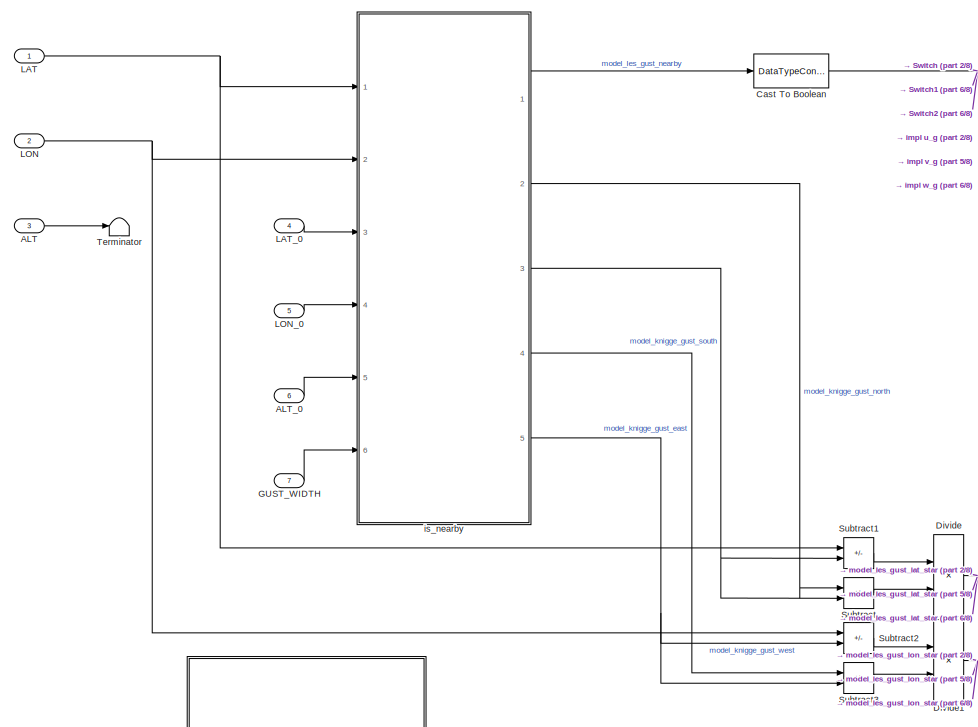
[diagram: root canvas - part 1/8, top left region]
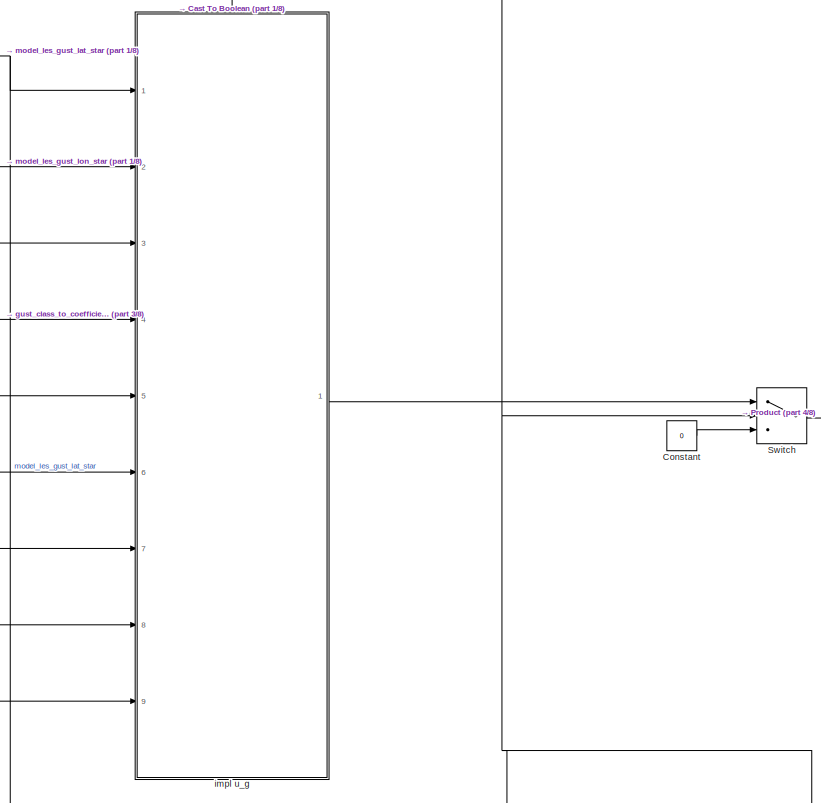
[diagram: root canvas - part 2/8, top center region]
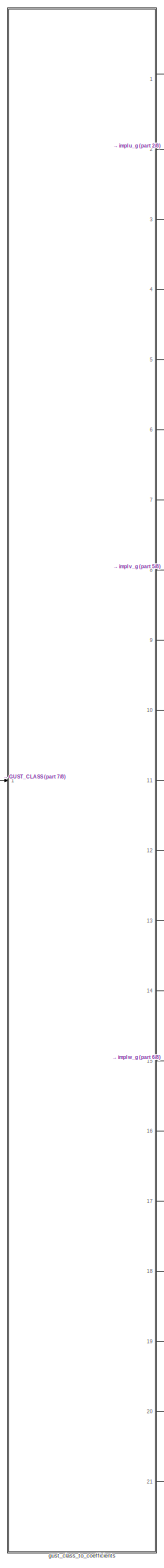
[diagram: root canvas - part 3/8, left side, full height]
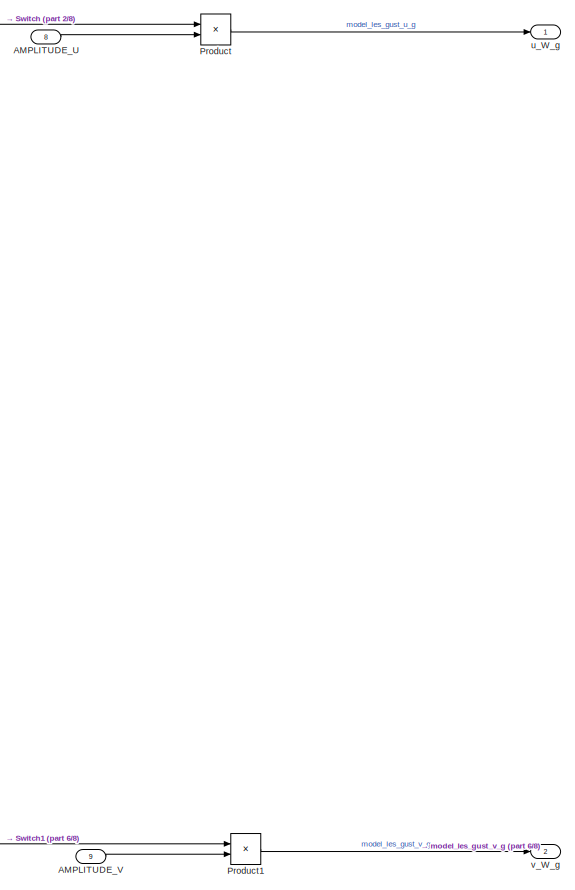
[diagram: root canvas - part 4/8, middle right region]
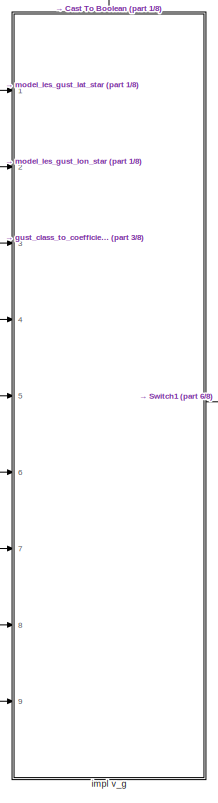
[diagram: root canvas - part 5/8, central region]
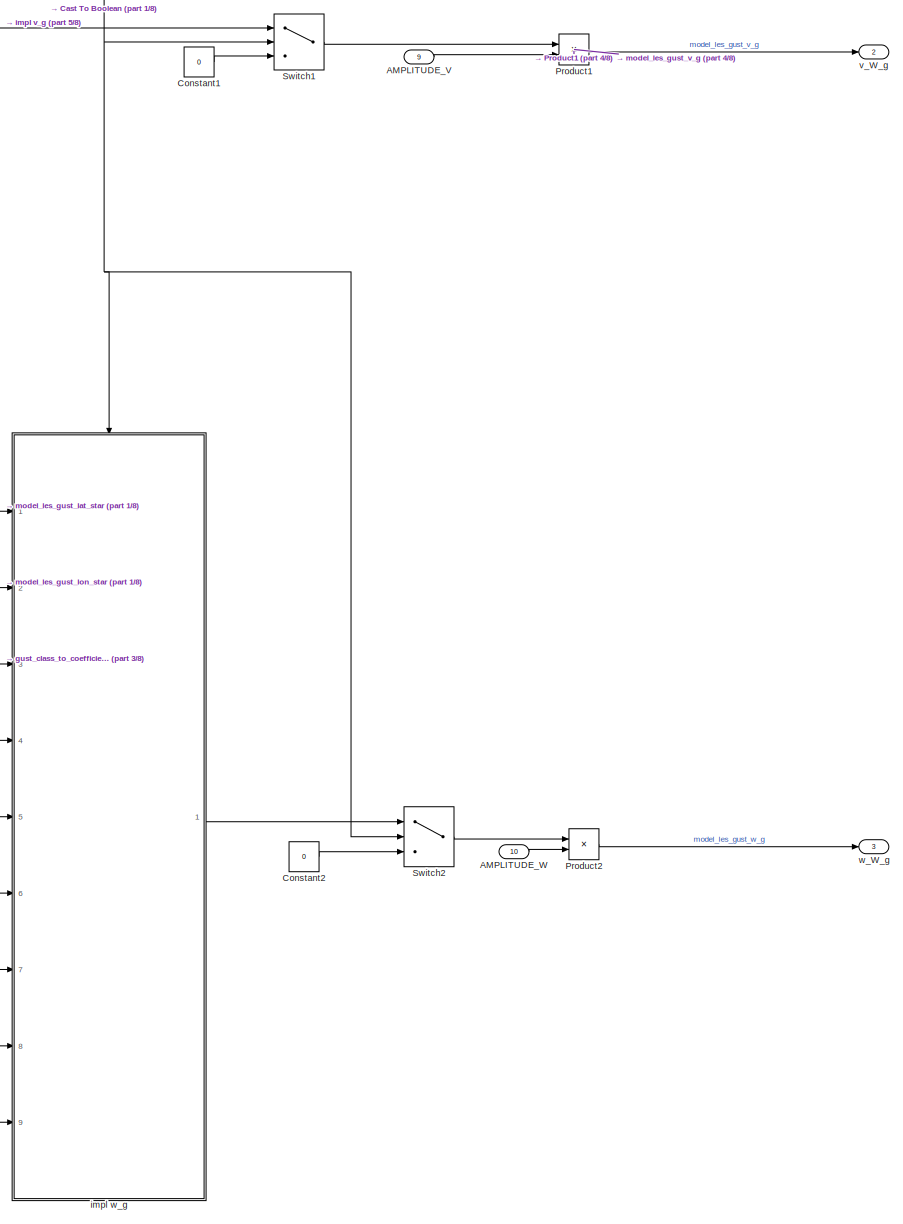
[diagram: root canvas - part 6/8, bottom right region]
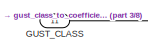
[diagram: root canvas - part 7/8, middle left region]
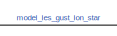
[diagram: root canvas - part 8/8, bottom center region]
MODEL slx_68d03452a80e
KIND model
BLOCK [Inport] ALT
  OutDataTypeStr = double
  Port = 3
BLOCK [Inport] ALT_0
  OutDataTypeStr = double
  Port = 6
BLOCK [Inport] AMPLITUDE_U
  OutDataTypeStr = double
  Port = 8
BLOCK [Inport] AMPLITUDE_V
  OutDataTypeStr = double
  Port = 9
BLOCK [Inport] AMPLITUDE_W
  OutDataTypeStr = double
  Port = 10
BLOCK [DataTypeConversion] Cast To Boolean
  OutDataTypeStr = boolean
  RndMeth = Floor
  SaturateOnIntegerOverflow = off
BLOCK [Constant] Constant
  Value = 0
BLOCK [Constant] Constant1
  Value = 0
BLOCK [Constant] Constant2
  Value = 0
BLOCK [Product] Divide
  Inputs = */
  Ports = [2, 1]
BLOCK [Product] Divide1
  Inputs = */
  Ports = [2, 1]
BLOCK [Inport] GUST_CLASS
  OutDataTypeStr = double
  Port = 11
BLOCK [Inport] GUST_WIDTH
  OutDataTypeStr = double
  Port = 7
BLOCK [Inport] LAT
  OutDataTypeStr = double
BLOCK [Inport] LAT_0
  OutDataTypeStr = double
  Port = 4
BLOCK [Inport] LON
  OutDataTypeStr = double
  Port = 2
BLOCK [Inport] LON_0
  OutDataTypeStr = double
  Port = 5
BLOCK [Product] Product
  Ports = [2, 1]
BLOCK [Product] Product1
  Ports = [2, 1]
BLOCK [Product] Product2
  Ports = [2, 1]
BLOCK [Sum] Subtract
  IconShape = rectangular
  Inputs = +-
  Ports = [2, 1]
BLOCK [Sum] Subtract1
  IconShape = rectangular
  Inputs = +-
  Ports = [2, 1]
BLOCK [Sum] Subtract2
  IconShape = rectangular
  Inputs = +-
  Ports = [2, 1]
BLOCK [Sum] Subtract3
  IconShape = rectangular
  Inputs = +-
  Ports = [2, 1]
BLOCK [Switch] Switch
  Criteria = u2 > Threshold
  InputSameDT = off
  SaturateOnIntegerOverflow = off
BLOCK [Switch] Switch1
  Criteria = u2 > Threshold
  InputSameDT = off
  SaturateOnIntegerOverflow = off
BLOCK [Switch] Switch2
  Criteria = u2 > Threshold
  InputSameDT = off
  SaturateOnIntegerOverflow = off
BLOCK [Terminator] Terminator
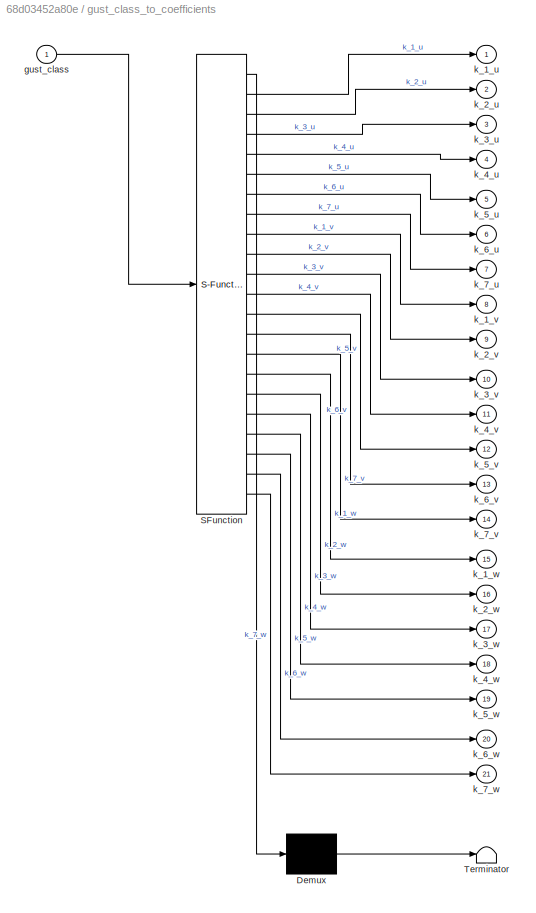
BLOCK [SubSystem] gust_class_to_coefficients
  ErrorFcn = Stateflow.Translate.translate
  PermitHierarchicalResolution = ExplicitOnly
  Ports = [1, 21]
  RequestExecContextInheritance = off
  SFBlockType = MATLAB Function
  TreatAsAtomicUnit = on
BLOCK [Demux] gust_class_to_coefficients/ Demux 
  Outputs = 1
  Ports = [1, 1]
BLOCK [S-Function] gust_class_to_coefficients/ SFunction 
  EnableBusSupport = on
  FunctionName = sf_sfun
  PortCounts = [1 22]
  Ports = [1, 22]
  SFcnIsStateOwnerBlock = off
  SFunctionDeploymentMode = off
  Tag = Stateflow S-Function 2
BLOCK [Terminator] gust_class_to_coefficients/ Terminator 
BLOCK [Inport] gust_class_to_coefficients/gust_class
BLOCK [Outport] gust_class_to_coefficients/k_1_u
BLOCK [Outport] gust_class_to_coefficients/k_1_v
  Port = 8
BLOCK [Outport] gust_class_to_coefficients/k_1_w
  Port = 15
BLOCK [Outport] gust_class_to_coefficients/k_2_u
  Port = 2
BLOCK [Outport] gust_class_to_coefficients/k_2_v
  Port = 9
BLOCK [Outport] gust_class_to_coefficients/k_2_w
  Port = 16
BLOCK [Outport] gust_class_to_coefficients/k_3_u
  Port = 3
BLOCK [Outport] gust_class_to_coefficients/k_3_v
  Port = 10
BLOCK [Outport] gust_class_to_coefficients/k_3_w
  Port = 17
BLOCK [Outport] gust_class_to_coefficients/k_4_u
  Port = 4
BLOCK [Outport] gust_class_to_coefficients/k_4_v
  Port = 11
BLOCK [Outport] gust_class_to_coefficients/k_4_w
  Port = 18
BLOCK [Outport] gust_class_to_coefficients/k_5_u
  Port = 5
BLOCK [Outport] gust_class_to_coefficients/k_5_v
  Port = 12
BLOCK [Outport] gust_class_to_coefficients/k_5_w
  Port = 19
BLOCK [Outport] gust_class_to_coefficients/k_6_u
  Port = 6
BLOCK [Outport] gust_class_to_coefficients/k_6_v
  Port = 13
BLOCK [Outport] gust_class_to_coefficients/k_6_w
  Port = 20
BLOCK [Outport] gust_class_to_coefficients/k_7_u
  Port = 7
BLOCK [Outport] gust_class_to_coefficients/k_7_v
  Port = 14
BLOCK [Outport] gust_class_to_coefficients/k_7_w
  Port = 21
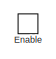
[diagram: impl u_g - part 1/4, top center region]
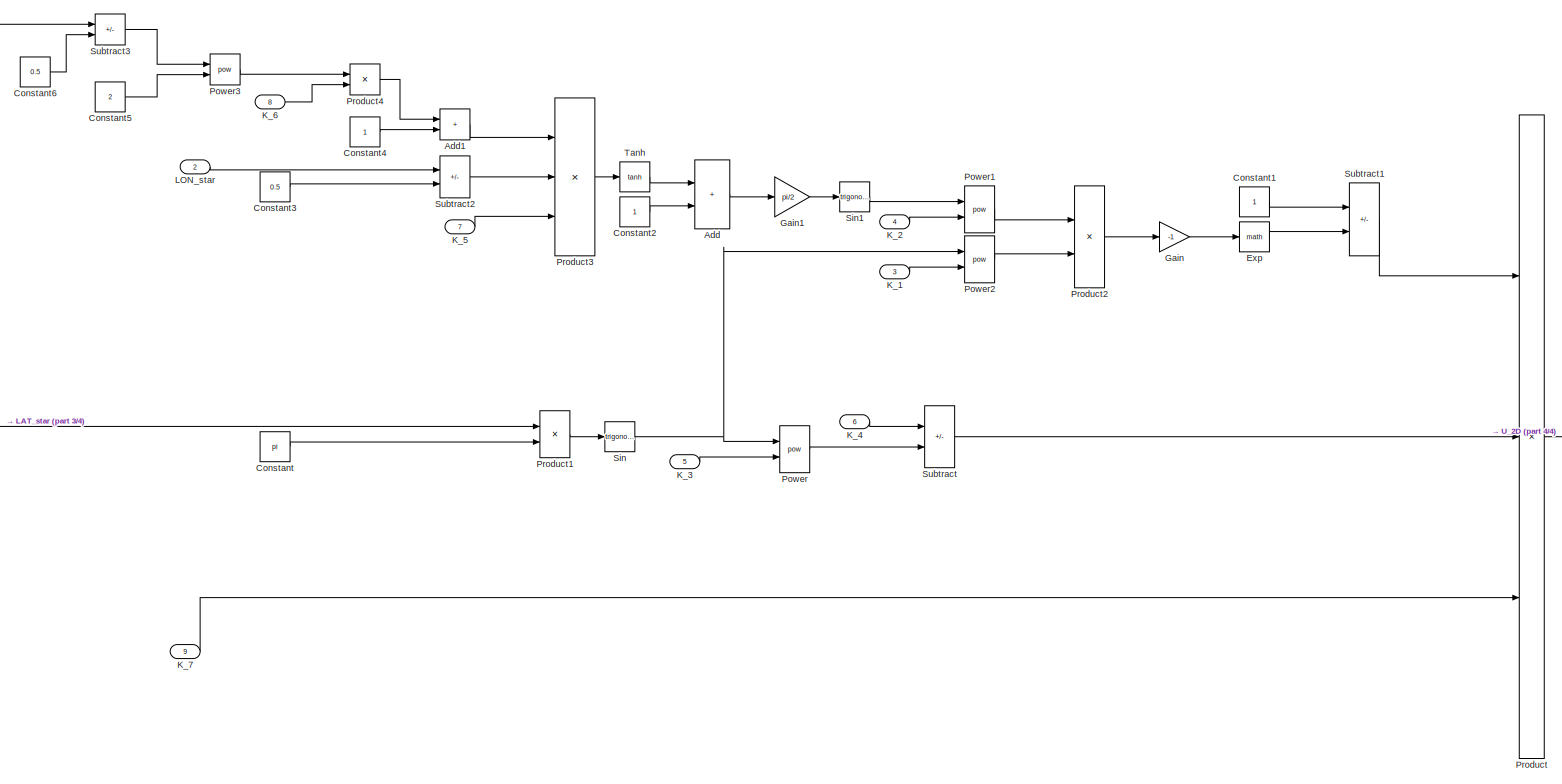
[diagram: impl u_g - part 2/4, most of the canvas]
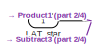
[diagram: impl u_g - part 3/4, middle left region]
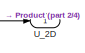
[diagram: impl u_g - part 4/4, middle right region]
BLOCK [SubSystem] impl u_g
  Ports = [9, 1, 1]
  RequestExecContextInheritance = off
  TreatAsAtomicUnit = on
BLOCK [Sum] impl u_g/Add
  IconShape = rectangular
  Ports = [2, 1]
BLOCK [Sum] impl u_g/Add1
  IconShape = rectangular
  Ports = [2, 1]
BLOCK [Constant] impl u_g/Constant
  Value = pi
BLOCK [Constant] impl u_g/Constant1
BLOCK [Constant] impl u_g/Constant2
BLOCK [Constant] impl u_g/Constant3
  Value = 0.5
BLOCK [Constant] impl u_g/Constant4
BLOCK [Constant] impl u_g/Constant5
  Value = 2
BLOCK [Constant] impl u_g/Constant6
  Value = 0.5
BLOCK [EnablePort] impl u_g/Enable
  Ports = []
BLOCK [Math] impl u_g/Exp
  Ports = [1, 1]
BLOCK [Gain] impl u_g/Gain
  Gain = -1
BLOCK [Gain] impl u_g/Gain1
  Gain = pi/2
BLOCK [Inport] impl u_g/K_1
  OutDataTypeStr = double
  Port = 3
BLOCK [Inport] impl u_g/K_2
  OutDataTypeStr = double
  Port = 4
BLOCK [Inport] impl u_g/K_3
  OutDataTypeStr = double
  Port = 5
BLOCK [Inport] impl u_g/K_4
  OutDataTypeStr = double
  Port = 6
BLOCK [Inport] impl u_g/K_5
  OutDataTypeStr = double
  Port = 7
BLOCK [Inport] impl u_g/K_6
  OutDataTypeStr = double
  Port = 8
BLOCK [Inport] impl u_g/K_7
  OutDataTypeStr = double
  Port = 9
BLOCK [Inport] impl u_g/LAT_star
  OutDataTypeStr = double
BLOCK [Inport] impl u_g/LON_star
  OutDataTypeStr = double
  Port = 2
BLOCK [Math] impl u_g/Power
  Operator = pow
  Ports = [2, 1]
BLOCK [Math] impl u_g/Power1
  Operator = pow
  Ports = [2, 1]
BLOCK [Math] impl u_g/Power2
  Operator = pow
  Ports = [2, 1]
BLOCK [Math] impl u_g/Power3
  Operator = pow
  Ports = [2, 1]
BLOCK [Product] impl u_g/Product
  Inputs = 3
  Ports = [3, 1]
BLOCK [Product] impl u_g/Product1
  Ports = [2, 1]
BLOCK [Product] impl u_g/Product2
  Ports = [2, 1]
BLOCK [Product] impl u_g/Product3
  Inputs = 3
  Ports = [3, 1]
BLOCK [Product] impl u_g/Product4
  Ports = [2, 1]
BLOCK [Trigonometry] impl u_g/Sin
  Ports = [1, 1]
BLOCK [Trigonometry] impl u_g/Sin1
  Ports = [1, 1]
BLOCK [Sum] impl u_g/Subtract
  IconShape = rectangular
  Inputs = +-
  Ports = [2, 1]
BLOCK [Sum] impl u_g/Subtract1
  IconShape = rectangular
  Inputs = +-
  Ports = [2, 1]
BLOCK [Sum] impl u_g/Subtract2
  IconShape = rectangular
  Inputs = +-
  Ports = [2, 1]
BLOCK [Sum] impl u_g/Subtract3
  IconShape = rectangular
  Inputs = +-
  Ports = [2, 1]
BLOCK [Trigonometry] impl u_g/Tanh
  Operator = tanh
  Ports = [1, 1]
BLOCK [Outport] impl u_g/U_2D
  OutDataTypeStr = double
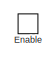
[diagram: impl v_g - part 1/4, top center region]
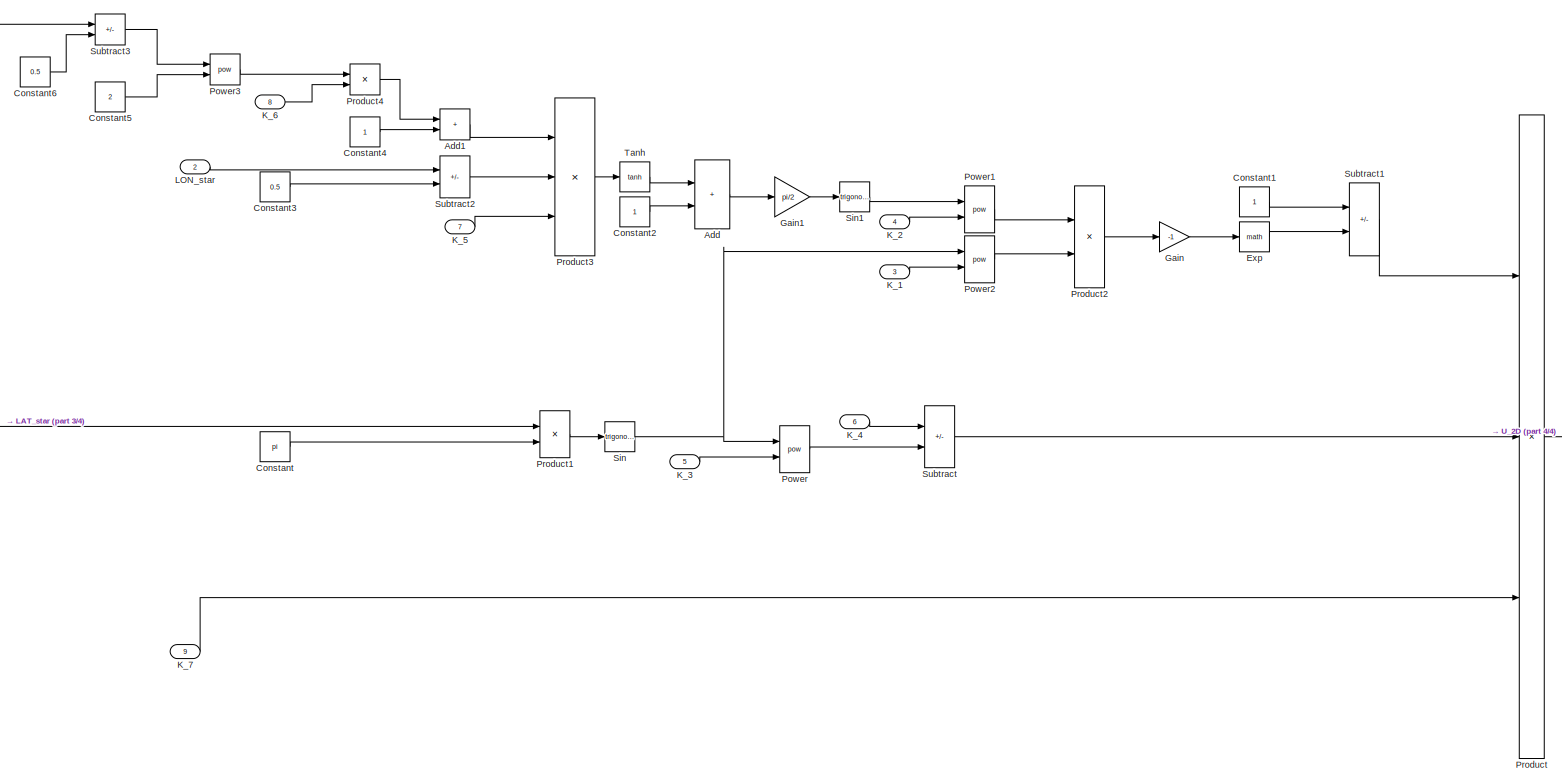
[diagram: impl v_g - part 2/4, most of the canvas]
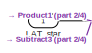
[diagram: impl v_g - part 3/4, middle left region]
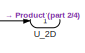
[diagram: impl v_g - part 4/4, middle right region]
BLOCK [SubSystem] impl v_g
  Ports = [9, 1, 1]
  RequestExecContextInheritance = off
  TreatAsAtomicUnit = on
BLOCK [Sum] impl v_g/Add
  IconShape = rectangular
  Ports = [2, 1]
BLOCK [Sum] impl v_g/Add1
  IconShape = rectangular
  Ports = [2, 1]
BLOCK [Constant] impl v_g/Constant
  Value = pi
BLOCK [Constant] impl v_g/Constant1
BLOCK [Constant] impl v_g/Constant2
BLOCK [Constant] impl v_g/Constant3
  Value = 0.5
BLOCK [Constant] impl v_g/Constant4
BLOCK [Constant] impl v_g/Constant5
  Value = 2
BLOCK [Constant] impl v_g/Constant6
  Value = 0.5
BLOCK [EnablePort] impl v_g/Enable
  Ports = []
BLOCK [Math] impl v_g/Exp
  Ports = [1, 1]
BLOCK [Gain] impl v_g/Gain
  Gain = -1
BLOCK [Gain] impl v_g/Gain1
  Gain = pi/2
BLOCK [Inport] impl v_g/K_1
  OutDataTypeStr = double
  Port = 3
BLOCK [Inport] impl v_g/K_2
  OutDataTypeStr = double
  Port = 4
BLOCK [Inport] impl v_g/K_3
  OutDataTypeStr = double
  Port = 5
BLOCK [Inport] impl v_g/K_4
  OutDataTypeStr = double
  Port = 6
BLOCK [Inport] impl v_g/K_5
  OutDataTypeStr = double
  Port = 7
BLOCK [Inport] impl v_g/K_6
  OutDataTypeStr = double
  Port = 8
BLOCK [Inport] impl v_g/K_7
  OutDataTypeStr = double
  Port = 9
BLOCK [Inport] impl v_g/LAT_star
  OutDataTypeStr = double
BLOCK [Inport] impl v_g/LON_star
  OutDataTypeStr = double
  Port = 2
BLOCK [Math] impl v_g/Power
  Operator = pow
  Ports = [2, 1]
BLOCK [Math] impl v_g/Power1
  Operator = pow
  Ports = [2, 1]
BLOCK [Math] impl v_g/Power2
  Operator = pow
  Ports = [2, 1]
BLOCK [Math] impl v_g/Power3
  Operator = pow
  Ports = [2, 1]
BLOCK [Product] impl v_g/Product
  Inputs = 3
  Ports = [3, 1]
BLOCK [Product] impl v_g/Product1
  Ports = [2, 1]
BLOCK [Product] impl v_g/Product2
  Ports = [2, 1]
BLOCK [Product] impl v_g/Product3
  Inputs = 3
  Ports = [3, 1]
BLOCK [Product] impl v_g/Product4
  Ports = [2, 1]
BLOCK [Trigonometry] impl v_g/Sin
  Ports = [1, 1]
BLOCK [Trigonometry] impl v_g/Sin1
  Ports = [1, 1]
BLOCK [Sum] impl v_g/Subtract
  IconShape = rectangular
  Inputs = +-
  Ports = [2, 1]
BLOCK [Sum] impl v_g/Subtract1
  IconShape = rectangular
  Inputs = +-
  Ports = [2, 1]
BLOCK [Sum] impl v_g/Subtract2
  IconShape = rectangular
  Inputs = +-
  Ports = [2, 1]
BLOCK [Sum] impl v_g/Subtract3
  IconShape = rectangular
  Inputs = +-
  Ports = [2, 1]
BLOCK [Trigonometry] impl v_g/Tanh
  Operator = tanh
  Ports = [1, 1]
BLOCK [Outport] impl v_g/U_2D
  OutDataTypeStr = double
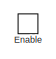
[diagram: impl w_g - part 1/4, top center region]
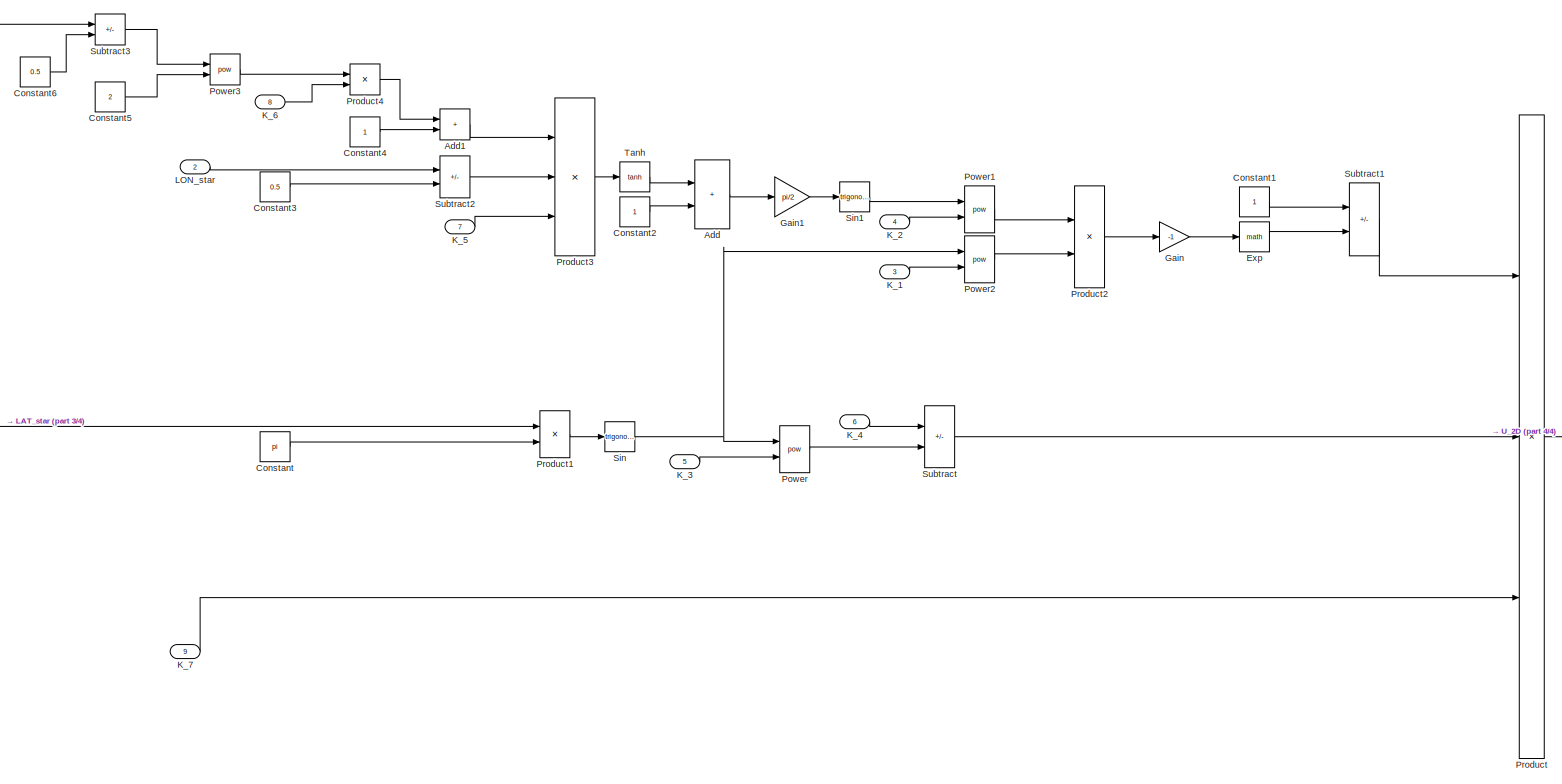
[diagram: impl w_g - part 2/4, most of the canvas]
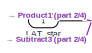
[diagram: impl w_g - part 3/4, middle left region]
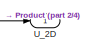
[diagram: impl w_g - part 4/4, middle right region]
BLOCK [SubSystem] impl w_g
  Ports = [9, 1, 1]
  RequestExecContextInheritance = off
  TreatAsAtomicUnit = on
BLOCK [Sum] impl w_g/Add
  IconShape = rectangular
  Ports = [2, 1]
BLOCK [Sum] impl w_g/Add1
  IconShape = rectangular
  Ports = [2, 1]
BLOCK [Constant] impl w_g/Constant
  Value = pi
BLOCK [Constant] impl w_g/Constant1
BLOCK [Constant] impl w_g/Constant2
BLOCK [Constant] impl w_g/Constant3
  Value = 0.5
BLOCK [Constant] impl w_g/Constant4
BLOCK [Constant] impl w_g/Constant5
  Value = 2
BLOCK [Constant] impl w_g/Constant6
  Value = 0.5
BLOCK [EnablePort] impl w_g/Enable
  Ports = []
BLOCK [Math] impl w_g/Exp
  Ports = [1, 1]
BLOCK [Gain] impl w_g/Gain
  Gain = -1
BLOCK [Gain] impl w_g/Gain1
  Gain = pi/2
BLOCK [Inport] impl w_g/K_1
  OutDataTypeStr = double
  Port = 3
BLOCK [Inport] impl w_g/K_2
  OutDataTypeStr = double
  Port = 4
BLOCK [Inport] impl w_g/K_3
  OutDataTypeStr = double
  Port = 5
BLOCK [Inport] impl w_g/K_4
  OutDataTypeStr = double
  Port = 6
BLOCK [Inport] impl w_g/K_5
  OutDataTypeStr = double
  Port = 7
BLOCK [Inport] impl w_g/K_6
  OutDataTypeStr = double
  Port = 8
BLOCK [Inport] impl w_g/K_7
  OutDataTypeStr = double
  Port = 9
BLOCK [Inport] impl w_g/LAT_star
  OutDataTypeStr = double
BLOCK [Inport] impl w_g/LON_star
  OutDataTypeStr = double
  Port = 2
BLOCK [Math] impl w_g/Power
  Operator = pow
  Ports = [2, 1]
BLOCK [Math] impl w_g/Power1
  Operator = pow
  Ports = [2, 1]
BLOCK [Math] impl w_g/Power2
  Operator = pow
  Ports = [2, 1]
BLOCK [Math] impl w_g/Power3
  Operator = pow
  Ports = [2, 1]
BLOCK [Product] impl w_g/Product
  Inputs = 3
  Ports = [3, 1]
BLOCK [Product] impl w_g/Product1
  Ports = [2, 1]
BLOCK [Product] impl w_g/Product2
  Ports = [2, 1]
BLOCK [Product] impl w_g/Product3
  Inputs = 3
  Ports = [3, 1]
BLOCK [Product] impl w_g/Product4
  Ports = [2, 1]
BLOCK [Trigonometry] impl w_g/Sin
  Ports = [1, 1]
BLOCK [Trigonometry] impl w_g/Sin1
  Ports = [1, 1]
BLOCK [Sum] impl w_g/Subtract
  IconShape = rectangular
  Inputs = +-
  Ports = [2, 1]
BLOCK [Sum] impl w_g/Subtract1
  IconShape = rectangular
  Inputs = +-
  Ports = [2, 1]
BLOCK [Sum] impl w_g/Subtract2
  IconShape = rectangular
  Inputs = +-
  Ports = [2, 1]
BLOCK [Sum] impl w_g/Subtract3
  IconShape = rectangular
  Inputs = +-
  Ports = [2, 1]
BLOCK [Trigonometry] impl w_g/Tanh
  Operator = tanh
  Ports = [1, 1]
BLOCK [Outport] impl w_g/U_2D
  OutDataTypeStr = double
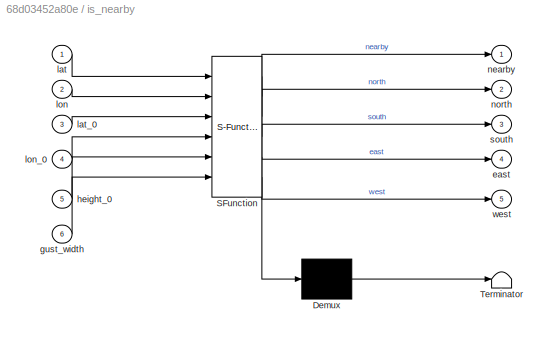
BLOCK [SubSystem] is_nearby
  ErrorFcn = Stateflow.Translate.translate
  PermitHierarchicalResolution = ExplicitOnly
  Ports = [6, 5]
  RequestExecContextInheritance = off
  SFBlockType = MATLAB Function
  TreatAsAtomicUnit = on
BLOCK [Demux] is_nearby/ Demux 
  Outputs = 1
  Ports = [1, 1]
BLOCK [S-Function] is_nearby/ SFunction 
  EnableBusSupport = on
  FunctionName = sf_sfun
  PortCounts = [6 6]
  Ports = [6, 6]
  SFcnIsStateOwnerBlock = off
  SFunctionDeploymentMode = off
  Tag = Stateflow S-Function 1
BLOCK [Terminator] is_nearby/ Terminator 
BLOCK [Outport] is_nearby/east
  Port = 4
BLOCK [Inport] is_nearby/gust_width
  Port = 6
BLOCK [Inport] is_nearby/height_0
  Port = 5
BLOCK [Inport] is_nearby/lat
BLOCK [Inport] is_nearby/lat_0
  Port = 3
BLOCK [Inport] is_nearby/lon
  Port = 2
BLOCK [Inport] is_nearby/lon_0
  Port = 4
BLOCK [Outport] is_nearby/nearby
BLOCK [Outport] is_nearby/north
  Port = 2
BLOCK [Outport] is_nearby/south
  Port = 3
BLOCK [Outport] is_nearby/west
  Port = 5
BLOCK [Outport] u_W_g
  OutDataTypeStr = double
BLOCK [Outport] v_W_g
  OutDataTypeStr = double
  Port = 2
BLOCK [Outport] w_W_g
  OutDataTypeStr = double
  Port = 3
LINE ALT:1 -> Terminator:1
LINE ALT_0:1 -> is_nearby:5
LINE AMPLITUDE_U:1 -> Product:2
LINE AMPLITUDE_V:1 -> Product1:2
LINE AMPLITUDE_W:1 -> Product2:2
NET Cast To Boolean:1 -> Switch1:2, Switch2:2, Switch:2, impl u_g:enable, impl v_g:enable, impl w_g:enable
LINE Constant1:1 -> Switch1:3
LINE Constant2:1 -> Switch2:3
LINE Constant:1 -> Switch:3
NET Divide1:1 -> impl u_g:2, impl v_g:2, impl w_g:2
NET Divide:1 -> impl u_g:1, impl v_g:1, impl w_g:1
LINE GUST_CLASS:1 -> gust_class_to_coefficients:1
LINE GUST_WIDTH:1 -> is_nearby:6
NET LAT:1 -> Subtract1:1, is_nearby:1
LINE LAT_0:1 -> is_nearby:3
NET LON:1 -> Subtract2:1, is_nearby:2
LINE LON_0:1 -> is_nearby:4
LINE Product1:1 -> v_W_g:1
LINE Product2:1 -> w_W_g:1
LINE Product:1 -> u_W_g:1
LINE Subtract1:1 -> Divide:1
LINE Subtract2:1 -> Divide1:1
LINE Subtract3:1 -> Divide1:2
LINE Subtract:1 -> Divide:2
LINE Switch1:1 -> Product1:1
LINE Switch2:1 -> Product2:1
LINE Switch:1 -> Product:1
LINE gust_class_to_coefficients:1 -> impl u_g:3
LINE gust_class_to_coefficients:10 -> impl v_g:5
LINE gust_class_to_coefficients:11 -> impl v_g:6
LINE gust_class_to_coefficients:12 -> impl v_g:7
LINE gust_class_to_coefficients:13 -> impl v_g:8
LINE gust_class_to_coefficients:14 -> impl v_g:9
LINE gust_class_to_coefficients:15 -> impl w_g:3
LINE gust_class_to_coefficients:16 -> impl w_g:4
LINE gust_class_to_coefficients:17 -> impl w_g:5
LINE gust_class_to_coefficients:18 -> impl w_g:6
LINE gust_class_to_coefficients:19 -> impl w_g:7
LINE gust_class_to_coefficients:2 -> impl u_g:4
LINE gust_class_to_coefficients:20 -> impl w_g:8
LINE gust_class_to_coefficients:21 -> impl w_g:9
LINE gust_class_to_coefficients:3 -> impl u_g:5
LINE gust_class_to_coefficients:4 -> impl u_g:6
LINE gust_class_to_coefficients:5 -> impl u_g:7
LINE gust_class_to_coefficients:6 -> impl u_g:8
LINE gust_class_to_coefficients:7 -> impl u_g:9
LINE gust_class_to_coefficients:8 -> impl v_g:3
LINE gust_class_to_coefficients:9 -> impl v_g:4
LINE impl u_g/Add1:1 -> impl u_g/Product3:1
LINE impl u_g/Add:1 -> impl u_g/Gain1:1
LINE impl u_g/Constant1:1 -> impl u_g/Subtract1:1
LINE impl u_g/Constant2:1 -> impl u_g/Add:2
LINE impl u_g/Constant3:1 -> impl u_g/Subtract2:2
LINE impl u_g/Constant4:1 -> impl u_g/Add1:2
LINE impl u_g/Constant5:1 -> impl u_g/Power3:2
LINE impl u_g/Constant6:1 -> impl u_g/Subtract3:2
LINE impl u_g/Constant:1 -> impl u_g/Product1:2
LINE impl u_g/Exp:1 -> impl u_g/Subtract1:2
LINE impl u_g/Gain1:1 -> impl u_g/Sin1:1
LINE impl u_g/Gain:1 -> impl u_g/Exp:1
LINE impl u_g/K_1:1 -> impl u_g/Power2:2
LINE impl u_g/K_2:1 -> impl u_g/Power1:2
LINE impl u_g/K_3:1 -> impl u_g/Power:2
LINE impl u_g/K_4:1 -> impl u_g/Subtract:1
LINE impl u_g/K_5:1 -> impl u_g/Product3:3
LINE impl u_g/K_6:1 -> impl u_g/Product4:2
LINE impl u_g/K_7:1 -> impl u_g/Product:3
NET impl u_g/LAT_star:1 -> impl u_g/Product1:1, impl u_g/Subtract3:1
LINE impl u_g/LON_star:1 -> impl u_g/Subtract2:1
LINE impl u_g/Power1:1 -> impl u_g/Product2:1
LINE impl u_g/Power2:1 -> impl u_g/Product2:2
LINE impl u_g/Power3:1 -> impl u_g/Product4:1
LINE impl u_g/Power:1 -> impl u_g/Subtract:2
LINE impl u_g/Product1:1 -> impl u_g/Sin:1
LINE impl u_g/Product2:1 -> impl u_g/Gain:1
LINE impl u_g/Product3:1 -> impl u_g/Tanh:1
LINE impl u_g/Product4:1 -> impl u_g/Add1:1
LINE impl u_g/Product:1 -> impl u_g/U_2D:1
LINE impl u_g/Sin1:1 -> impl u_g/Power1:1
NET impl u_g/Sin:1 -> impl u_g/Power2:1, impl u_g/Power:1
LINE impl u_g/Subtract1:1 -> impl u_g/Product:1
LINE impl u_g/Subtract2:1 -> impl u_g/Product3:2
LINE impl u_g/Subtract3:1 -> impl u_g/Power3:1
LINE impl u_g/Subtract:1 -> impl u_g/Product:2
LINE impl u_g/Tanh:1 -> impl u_g/Add:1
LINE impl u_g:1 -> Switch:1
LINE impl v_g/Add1:1 -> impl v_g/Product3:1
LINE impl v_g/Add:1 -> impl v_g/Gain1:1
LINE impl v_g/Constant1:1 -> impl v_g/Subtract1:1
LINE impl v_g/Constant2:1 -> impl v_g/Add:2
LINE impl v_g/Constant3:1 -> impl v_g/Subtract2:2
LINE impl v_g/Constant4:1 -> impl v_g/Add1:2
LINE impl v_g/Constant5:1 -> impl v_g/Power3:2
LINE impl v_g/Constant6:1 -> impl v_g/Subtract3:2
LINE impl v_g/Constant:1 -> impl v_g/Product1:2
LINE impl v_g/Exp:1 -> impl v_g/Subtract1:2
LINE impl v_g/Gain1:1 -> impl v_g/Sin1:1
LINE impl v_g/Gain:1 -> impl v_g/Exp:1
LINE impl v_g/K_1:1 -> impl v_g/Power2:2
LINE impl v_g/K_2:1 -> impl v_g/Power1:2
LINE impl v_g/K_3:1 -> impl v_g/Power:2
LINE impl v_g/K_4:1 -> impl v_g/Subtract:1
LINE impl v_g/K_5:1 -> impl v_g/Product3:3
LINE impl v_g/K_6:1 -> impl v_g/Product4:2
LINE impl v_g/K_7:1 -> impl v_g/Product:3
NET impl v_g/LAT_star:1 -> impl v_g/Product1:1, impl v_g/Subtract3:1
LINE impl v_g/LON_star:1 -> impl v_g/Subtract2:1
LINE impl v_g/Power1:1 -> impl v_g/Product2:1
LINE impl v_g/Power2:1 -> impl v_g/Product2:2
LINE impl v_g/Power3:1 -> impl v_g/Product4:1
LINE impl v_g/Power:1 -> impl v_g/Subtract:2
LINE impl v_g/Product1:1 -> impl v_g/Sin:1
LINE impl v_g/Product2:1 -> impl v_g/Gain:1
LINE impl v_g/Product3:1 -> impl v_g/Tanh:1
LINE impl v_g/Product4:1 -> impl v_g/Add1:1
LINE impl v_g/Product:1 -> impl v_g/U_2D:1
LINE impl v_g/Sin1:1 -> impl v_g/Power1:1
NET impl v_g/Sin:1 -> impl v_g/Power2:1, impl v_g/Power:1
LINE impl v_g/Subtract1:1 -> impl v_g/Product:1
LINE impl v_g/Subtract2:1 -> impl v_g/Product3:2
LINE impl v_g/Subtract3:1 -> impl v_g/Power3:1
LINE impl v_g/Subtract:1 -> impl v_g/Product:2
LINE impl v_g/Tanh:1 -> impl v_g/Add:1
LINE impl v_g:1 -> Switch1:1
LINE impl w_g/Add1:1 -> impl w_g/Product3:1
LINE impl w_g/Add:1 -> impl w_g/Gain1:1
LINE impl w_g/Constant1:1 -> impl w_g/Subtract1:1
LINE impl w_g/Constant2:1 -> impl w_g/Add:2
LINE impl w_g/Constant3:1 -> impl w_g/Subtract2:2
LINE impl w_g/Constant4:1 -> impl w_g/Add1:2
LINE impl w_g/Constant5:1 -> impl w_g/Power3:2
LINE impl w_g/Constant6:1 -> impl w_g/Subtract3:2
LINE impl w_g/Constant:1 -> impl w_g/Product1:2
LINE impl w_g/Exp:1 -> impl w_g/Subtract1:2
LINE impl w_g/Gain1:1 -> impl w_g/Sin1:1
LINE impl w_g/Gain:1 -> impl w_g/Exp:1
LINE impl w_g/K_1:1 -> impl w_g/Power2:2
LINE impl w_g/K_2:1 -> impl w_g/Power1:2
LINE impl w_g/K_3:1 -> impl w_g/Power:2
LINE impl w_g/K_4:1 -> impl w_g/Subtract:1
LINE impl w_g/K_5:1 -> impl w_g/Product3:3
LINE impl w_g/K_6:1 -> impl w_g/Product4:2
LINE impl w_g/K_7:1 -> impl w_g/Product:3
NET impl w_g/LAT_star:1 -> impl w_g/Product1:1, impl w_g/Subtract3:1
LINE impl w_g/LON_star:1 -> impl w_g/Subtract2:1
LINE impl w_g/Power1:1 -> impl w_g/Product2:1
LINE impl w_g/Power2:1 -> impl w_g/Product2:2
LINE impl w_g/Power3:1 -> impl w_g/Product4:1
LINE impl w_g/Power:1 -> impl w_g/Subtract:2
LINE impl w_g/Product1:1 -> impl w_g/Sin:1
LINE impl w_g/Product2:1 -> impl w_g/Gain:1
LINE impl w_g/Product3:1 -> impl w_g/Tanh:1
LINE impl w_g/Product4:1 -> impl w_g/Add1:1
LINE impl w_g/Product:1 -> impl w_g/U_2D:1
LINE impl w_g/Sin1:1 -> impl w_g/Power1:1
NET impl w_g/Sin:1 -> impl w_g/Power2:1, impl w_g/Power:1
LINE impl w_g/Subtract1:1 -> impl w_g/Product:1
LINE impl w_g/Subtract2:1 -> impl w_g/Product3:2
LINE impl w_g/Subtract3:1 -> impl w_g/Power3:1
LINE impl w_g/Subtract:1 -> impl w_g/Product:2
LINE impl w_g/Tanh:1 -> impl w_g/Add:1
LINE impl w_g:1 -> Switch2:1
LINE is_nearby:1 -> Cast To Boolean:1
LINE is_nearby:2 -> Subtract:1
NET is_nearby:3 -> Subtract1:2, Subtract:2
LINE is_nearby:4 -> Subtract3:1
NET is_nearby:5 -> Subtract2:2, Subtract3:2
note: NET lines group one-source signal fan-out (src -> all destinations, sorted); 1:1 wires keep LINE
CHART is_nearby states=1 transitions=1
  STATE_LABEL 'eML_blk_kernel()'
  STATE_LABEL "SCRIPT:\n% model_knigge\nfunction [nearby, north, south, east, west] = is_nearby(lat, lon, lat_0, lon_0, height_0, gust_width)\n    % Units:\n    % [lat] = rad\n    % [lon] = rad\n    % [lat_0] = rad\n    % [lon_0] = rad\n    % [height_0] = m\n    % [gust_width] = m\n    % Independet of altitude, phenomena is available on all heights, because otherwise height distribution is needed\n\n    % Option 1: doesn't ...<+1222ch>"
CHART gust_class_to_coefficients states=1 transitions=1
  STATE_LABEL 'eML_blk_kernel()'
  STATE_LABEL 'SCRIPT:\nfunction [k_1_u, k_2_u, k_3_u, k_4_u, k_5_u, k_6_u, k_7_u, ...\n    k_1_v, k_2_v, k_3_v, k_4_v, k_5_v, k_6_v, k_7_v, ...\n    k_1_w, k_2_w, k_3_w, k_4_w, k_5_w, k_6_w, k_7_w] = gust_class_to_coefficients(gust_class)\n%     gust_class = gust_class_vector(2);\n%     disp(gust_class_vector);\n    if gust_class == 1\n        k_1_u = 1.9;\n        k_2_u = 4.6;\n        k_3_u = 0.12;\n        k_4_u = 1.0...<+1326ch>'
CHART  states=0 transitions=0
CHART  states=0 transitions=0
